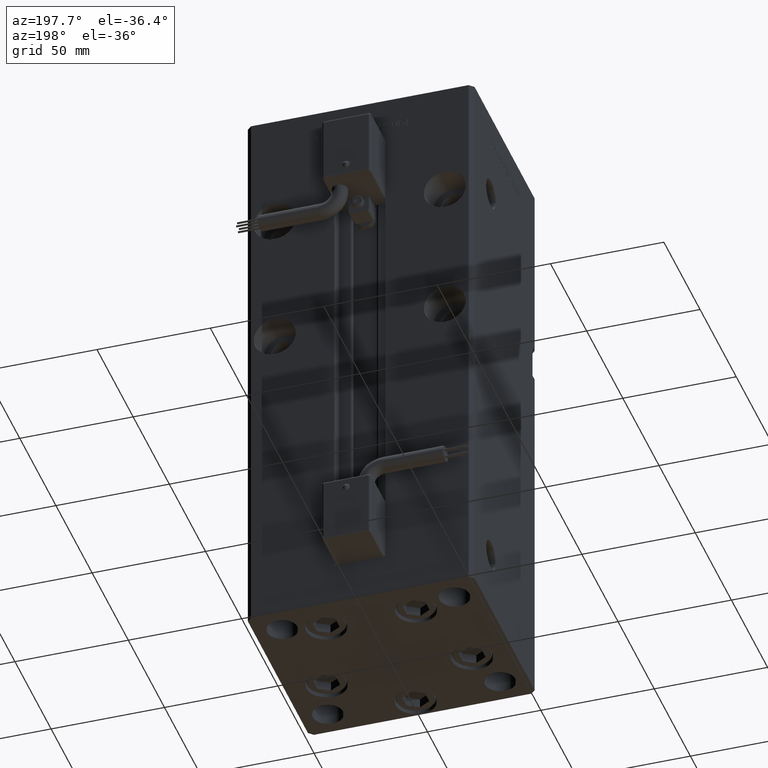
[diagram: clean part render]
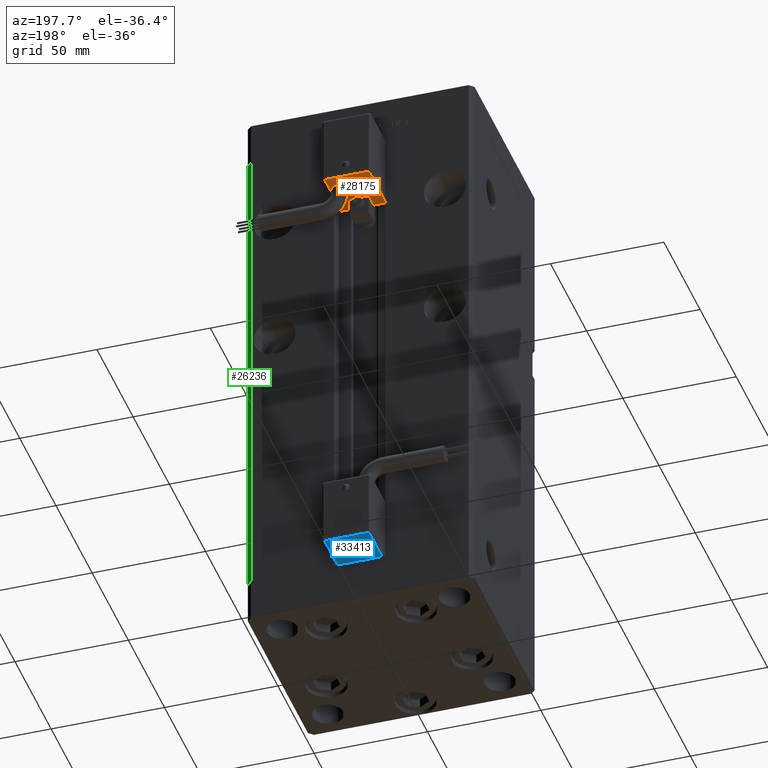
[diagram: same view with three faces highlighted in distinct colors, each labeled with its STEP entity id]
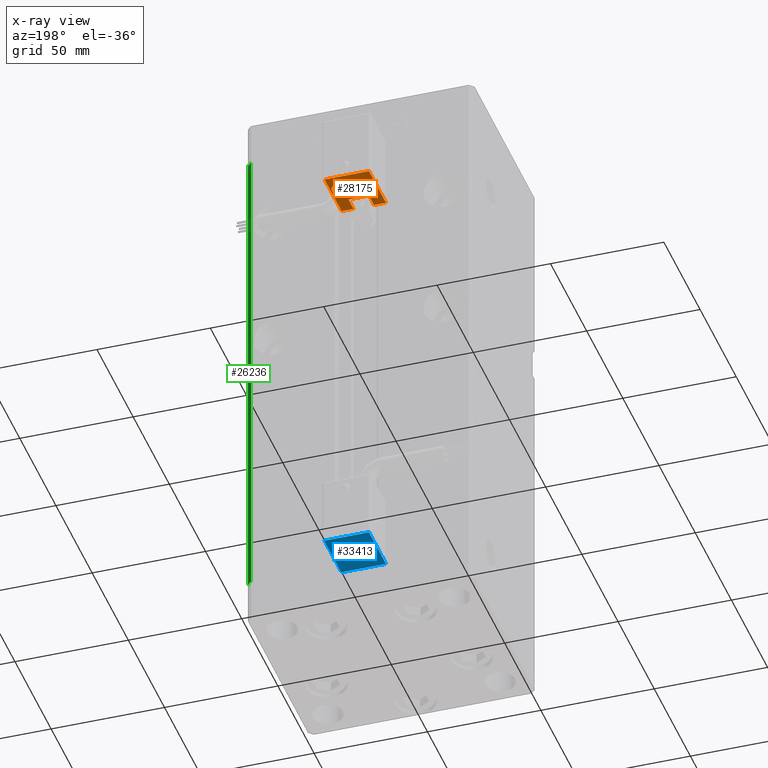
[diagram: x-ray of the same camera — body ghosted, the three highlighted faces saturated]
A machine part, auxiliary view with three faces highlighted in distinct colors.
The next image is the same camera in x-ray (body ghosted, the three faces saturated) — at least one of them is partly hidden behind the body in this view.
Their STEP definitions:

[orange] entity #28175 — the highlighted planar face has unit normal (0, -0, 1).
#741 = VERTEX_POINT ( 'NONE', #51564 ) ;
#929 = CARTESIAN_POINT ( 'NONE',  ( 4.500000000000000000, 34.00000000000000000, -55.00000000000000000 ) ) ;
#1082 = CARTESIAN_POINT ( 'NONE',  ( 9.799999999999998934, 50.50000000000000000, -55.00000000000000000 ) ) ;
#1833 = LINE ( 'NONE', #15482, #18000 ) ;
#2213 = VECTOR ( 'NONE', #31244, 1000.000000000000000 ) ;
#2519 = DIRECTION ( 'NONE',  ( 3.108624468950000014E-32, -1.400000000000000069E-16, 1.000000000000000000 ) ) ;
#4454 = VERTEX_POINT ( 'NONE', #33758 ) ;
#5756 = EDGE_CURVE ( 'NONE', #29025, #36406, #18706, .T. ) ;
#6130 = VECTOR ( 'NONE', #33051, 1000.000000000000000 ) ;
#8254 = EDGE_LOOP ( 'NONE', ( #42782, #18028, #24199, #39042, #17450, #50685, #31128, #36178 ) ) ;
#9630 = ORIENTED_EDGE ( 'NONE', *, *, #29558, .F. ) ;
#9673 = VECTOR ( 'NONE', #34107, 1000.000000000000000 ) ;
#11187 = DIRECTION ( 'NONE',  ( 2.220446049250000002E-16, 1.400000000000000069E-16, -1.000000000000000000 ) ) ;
#12172 = FACE_BOUND ( 'NONE', #44255, .T. ) ;
#12276 = CARTESIAN_POINT ( 'NONE',  ( 4.500000000000000000, 34.00000000000000000, -55.00000000000000000 ) ) ;
#13436 = AXIS2_PLACEMENT_3D ( 'NONE', #28672, #2519, #46019 ) ;
#13479 = EDGE_CURVE ( 'NONE', #4454, #55011, #53919, .T. ) ;
#13516 = CIRCLE ( 'NONE', #24411, 3.500000000000003109 ) ;
#14047 = CARTESIAN_POINT ( 'NONE',  ( -4.500000000000000000, 34.00000000000000000, -55.00000000000000000 ) ) ;
#15482 = CARTESIAN_POINT ( 'NONE',  ( 10.80000000000000071, 27.00000000000000000, -55.00000000000000000 ) ) ;
#15686 = LINE ( 'NONE', #12276, #6130 ) ;
#16155 = PLANE ( 'NONE',  #13436 ) ;
#16459 = EDGE_CURVE ( 'NONE', #25428, #49890, #23365, .T. ) ;
#17450 = ORIENTED_EDGE ( 'NONE', *, *, #24782, .T. ) ;
#17909 = VECTOR ( 'NONE', #22336, 1000.000000000000000 ) ;
#18000 = VECTOR ( 'NONE', #46193, 1000.000000000000000 ) ;
#18028 = ORIENTED_EDGE ( 'NONE', *, *, #24450, .T. ) ;
#18706 = LINE ( 'NONE', #23258, #2213 ) ;
#19176 = ORIENTED_EDGE ( 'NONE', *, *, #13479, .F. ) ;
#19395 = VERTEX_POINT ( 'NONE', #1082 ) ;
#19528 = VECTOR ( 'NONE', #35619, 1000.000000000000000 ) ;
#20740 = CARTESIAN_POINT ( 'NONE',  ( 10.80000000000000071, 27.00000000000000000, -55.00000000000000000 ) ) ;
#22336 = DIRECTION ( 'NONE',  ( 3.108624468950000014E-32, -1.000000000000000000, -1.400000000000000069E-16 ) ) ;
#23258 = CARTESIAN_POINT ( 'NONE',  ( -9.799999999999998934, 51.50000000000000000, -55.00000000000000000 ) ) ;
#23365 = LINE ( 'NONE', #929, #19528 ) ;
#24199 = ORIENTED_EDGE ( 'NONE', *, *, #5756, .T. ) ;
#24411 = AXIS2_PLACEMENT_3D ( 'NONE', #24836, #11187, #45600 ) ;
#24450 = EDGE_CURVE ( 'NONE', #40017, #29025, #25281, .T. ) ;
#24509 = DIRECTION ( 'NONE',  ( 2.220446049250000002E-16, 1.400000000000000069E-16, -1.000000000000000000 ) ) ;
#24782 = EDGE_CURVE ( 'NONE', #19395, #741, #43955, .T. ) ;
#24836 = CARTESIAN_POINT ( 'NONE',  ( 5.799999999999999822, 42.00000000000000000, -55.00000000000000000 ) ) ;
#25281 = LINE ( 'NONE', #20740, #9673 ) ;
#25428 = VERTEX_POINT ( 'NONE', #28332 ) ;
#25611 = EDGE_CURVE ( 'NONE', #36406, #19395, #38011, .T. ) ;
#26592 = CARTESIAN_POINT ( 'NONE',  ( 9.799999999999998934, 26.00000000000000000, -55.00000000000000000 ) ) ;
#26841 = LINE ( 'NONE', #14047, #51811 ) ;
#26954 = EDGE_CURVE ( 'NONE', #25428, #43612, #15686, .T. ) ;
#27110 = CARTESIAN_POINT ( 'NONE',  ( -4.500000000000000000, 27.00000000000000000, -55.00000000000000000 ) ) ;
#28175 = ADVANCED_FACE ( 'NONE', ( #41756, #12172 ), #16155, .F. ) ;
#28332 = CARTESIAN_POINT ( 'NONE',  ( 4.500000000000000000, 34.00000000000000000, -55.00000000000000000 ) ) ;
#28672 = CARTESIAN_POINT ( 'NONE',  ( 10.80000000000000071, 51.50000000000000000, -55.00000000000000000 ) ) ;
#28967 = CARTESIAN_POINT ( 'NONE',  ( -9.799999999999998934, 27.00000000000000000, -55.00000000000000000 ) ) ;
#29025 = VERTEX_POINT ( 'NONE', #28967 ) ;
#29475 = CARTESIAN_POINT ( 'NONE',  ( 10.80000000000000071, 50.50000000000000000, -55.00000000000000000 ) ) ;
#29558 = EDGE_CURVE ( 'NONE', #55011, #4454, #13516, .T. ) ;
#31128 = ORIENTED_EDGE ( 'NONE', *, *, #16459, .F. ) ;
#31244 = DIRECTION ( 'NONE',  ( -3.108624468950000014E-32, 1.000000000000000000, 1.400000000000000069E-16 ) ) ;
#33051 = DIRECTION ( 'NONE',  ( -1.000000000000000000, 0.000000000000000000, -2.220446049250000002E-16 ) ) ;
#33350 = EDGE_CURVE ( 'NONE', #43612, #40017, #26841, .T. ) ;
#33758 = CARTESIAN_POINT ( 'NONE',  ( 5.799999999999999822, 38.50000000000000000, -55.00000000000000000 ) ) ;
#34107 = DIRECTION ( 'NONE',  ( -1.000000000000000000, 0.000000000000000000, -2.220446049250000002E-16 ) ) ;
#35619 = DIRECTION ( 'NONE',  ( 2.664535259099999699E-32, -1.000000000000000000, -1.200000000000000024E-16 ) ) ;
#36178 = ORIENTED_EDGE ( 'NONE', *, *, #26954, .T. ) ;
#36406 = VERTEX_POINT ( 'NONE', #47605 ) ;
#37594 = DIRECTION ( 'NONE',  ( 0.000000000000000000, -1.000000000000000000, 0.000000000000000000 ) ) ;
#38011 = LINE ( 'NONE', #29475, #52419 ) ;
#38490 = CARTESIAN_POINT ( 'NONE',  ( 4.500000000000000000, 27.00000000000000000, -55.00000000000000000 ) ) ;
#39042 = ORIENTED_EDGE ( 'NONE', *, *, #25611, .T. ) ;
#40017 = VERTEX_POINT ( 'NONE', #27110 ) ;
#40987 = DIRECTION ( 'NONE',  ( 2.664535259099999699E-32, -1.000000000000000000, -1.200000000000000024E-16 ) ) ;
#41756 = FACE_OUTER_BOUND ( 'NONE', #8254, .T. ) ;
#42171 = AXIS2_PLACEMENT_3D ( 'NONE', #46124, #24509, #37594 ) ;
#42782 = ORIENTED_EDGE ( 'NONE', *, *, #33350, .T. ) ;
#43612 = VERTEX_POINT ( 'NONE', #52167 ) ;
#43955 = LINE ( 'NONE', #26592, #17909 ) ;
#44255 = EDGE_LOOP ( 'NONE', ( #19176, #9630 ) ) ;
#45600 = DIRECTION ( 'NONE',  ( 0.000000000000000000, -1.000000000000000000, 0.000000000000000000 ) ) ;
#46019 = DIRECTION ( 'NONE',  ( 1.000000000000000000, 2.220446049250000002E-16, 0.000000000000000000 ) ) ;
#46124 = CARTESIAN_POINT ( 'NONE',  ( 5.799999999999999822, 42.00000000000000000, -55.00000000000000000 ) ) ;
#46193 = DIRECTION ( 'NONE',  ( -1.000000000000000000, 0.000000000000000000, -2.220446049250000002E-16 ) ) ;
#46814 = DIRECTION ( 'NONE',  ( 1.000000000000000000, 0.000000000000000000, 2.220446049250000002E-16 ) ) ;
#47605 = CARTESIAN_POINT ( 'NONE',  ( -9.799999999999998934, 50.50000000000000000, -55.00000000000000000 ) ) ;
#49890 = VERTEX_POINT ( 'NONE', #38490 ) ;
#50600 = EDGE_CURVE ( 'NONE', #741, #49890, #1833, .T. ) ;
#50685 = ORIENTED_EDGE ( 'NONE', *, *, #50600, .T. ) ;
#51564 = CARTESIAN_POINT ( 'NONE',  ( 9.799999999999998934, 27.00000000000000000, -55.00000000000000000 ) ) ;
#51811 = VECTOR ( 'NONE', #40987, 1000.000000000000000 ) ;
#52167 = CARTESIAN_POINT ( 'NONE',  ( -4.500000000000000000, 34.00000000000000000, -55.00000000000000000 ) ) ;
#52419 = VECTOR ( 'NONE', #46814, 1000.000000000000000 ) ;
#53919 = CIRCLE ( 'NONE', #42171, 3.500000000000003109 ) ;
#54750 = CARTESIAN_POINT ( 'NONE',  ( 5.799999999999999822, 45.50000000000000711, -55.00000000000000000 ) ) ;
#55011 = VERTEX_POINT ( 'NONE', #54750 ) ;

[blue] entity #33413 — the highlighted planar face has unit normal (-0, 0, 1).
#193 = EDGE_CURVE ( 'NONE', #9019, #22032, #20075, .T. ) ;
#2310 = FACE_OUTER_BOUND ( 'NONE', #10930, .T. ) ;
#6286 = DIRECTION ( 'NONE',  ( 2.220446049250000002E-16, 1.400000000000000069E-16, -1.000000000000000000 ) ) ;
#7811 = VERTEX_POINT ( 'NONE', #36430 ) ;
#9019 = VERTEX_POINT ( 'NONE', #28038 ) ;
#10930 = EDGE_LOOP ( 'NONE', ( #18624, #18842, #49865, #28282 ) ) ;
#12593 = VECTOR ( 'NONE', #26083, 1000.000000000000000 ) ;
#15162 = CARTESIAN_POINT ( 'NONE',  ( 9.799999999999998934, 27.00000000000000000, -25.00000000000000000 ) ) ;
#15799 = CARTESIAN_POINT ( 'NONE',  ( -9.799999999999998934, 51.50000000000000000, -25.00000000000000000 ) ) ;
#16972 = CARTESIAN_POINT ( 'NONE',  ( -9.799999999999998934, 27.00000000000000000, -25.00000000000000000 ) ) ;
#17275 = LINE ( 'NONE', #34358, #12593 ) ;
#18624 = ORIENTED_EDGE ( 'NONE', *, *, #193, .T. ) ;
#18842 = ORIENTED_EDGE ( 'NONE', *, *, #47633, .T. ) ;
#20075 = LINE ( 'NONE', #15799, #34704 ) ;
#22032 = VERTEX_POINT ( 'NONE', #16972 ) ;
#24202 = PLANE ( 'NONE',  #55432 ) ;
#26083 = DIRECTION ( 'NONE',  ( -3.108624468950000014E-32, 1.000000000000000000, 1.400000000000000069E-16 ) ) ;
#27104 = DIRECTION ( 'NONE',  ( -1.000000000000000000, 0.000000000000000000, -2.220446049250000002E-16 ) ) ;
#27381 = LINE ( 'NONE', #49010, #38640 ) ;
#28038 = CARTESIAN_POINT ( 'NONE',  ( -9.799999999999998934, 50.50000000000000000, -25.00000000000000000 ) ) ;
#28282 = ORIENTED_EDGE ( 'NONE', *, *, #42817, .T. ) ;
#29167 = EDGE_CURVE ( 'NONE', #36598, #7811, #17275, .T. ) ;
#31405 = CARTESIAN_POINT ( 'NONE',  ( 10.80000000000000071, 51.50000000000000000, -25.00000000000000000 ) ) ;
#33163 = DIRECTION ( 'NONE',  ( 3.108624468950000014E-32, -1.000000000000000000, -1.400000000000000069E-16 ) ) ;
#33336 = VECTOR ( 'NONE', #45080, 1000.000000000000000 ) ;
#33413 = ADVANCED_FACE ( 'NONE', ( #2310 ), #24202, .F. ) ;
#34358 = CARTESIAN_POINT ( 'NONE',  ( 9.799999999999998934, 51.50000000000000000, -25.00000000000000000 ) ) ;
#34704 = VECTOR ( 'NONE', #33163, 1000.000000000000000 ) ;
#35670 = DIRECTION ( 'NONE',  ( 0.000000000000000000, -1.000000000000000000, -1.400000000000000069E-16 ) ) ;
#36430 = CARTESIAN_POINT ( 'NONE',  ( 9.799999999999998934, 50.50000000000000000, -25.00000000000000000 ) ) ;
#36598 = VERTEX_POINT ( 'NONE', #15162 ) ;
#38640 = VECTOR ( 'NONE', #27104, 1000.000000000000000 ) ;
#42817 = EDGE_CURVE ( 'NONE', #7811, #9019, #27381, .T. ) ;
#45080 = DIRECTION ( 'NONE',  ( 1.000000000000000000, 0.000000000000000000, 2.220446049250000002E-16 ) ) ;
#47633 = EDGE_CURVE ( 'NONE', #22032, #36598, #49339, .T. ) ;
#49010 = CARTESIAN_POINT ( 'NONE',  ( 10.80000000000000071, 50.50000000000000000, -25.00000000000000000 ) ) ;
#49339 = LINE ( 'NONE', #54165, #33336 ) ;
#49865 = ORIENTED_EDGE ( 'NONE', *, *, #29167, .T. ) ;
#54165 = CARTESIAN_POINT ( 'NONE',  ( 10.80000000000000071, 27.00000000000000000, -25.00000000000000000 ) ) ;
#55432 = AXIS2_PLACEMENT_3D ( 'NONE', #31405, #6286, #35670 ) ;

[green] entity #26236 — the highlighted planar face has unit normal (0.7071, 0.7071, 0).
#1346 = DIRECTION ( 'NONE',  ( 0.7071067811865463515, 0.7071067811865486830, -0.000000000000000000 ) ) ;
#1737 = EDGE_CURVE ( 'NONE', #30347, #26834, #54070, .T. ) ;
#2156 = CARTESIAN_POINT ( 'NONE',  ( 50.00000000000001421, 41.49999999999999289, 0.000000000000000000 ) ) ;
#5532 = EDGE_CURVE ( 'NONE', #30347, #40003, #19895, .T. ) ;
#7542 = DIRECTION ( 'NONE',  ( 0.7071067811865487940, -0.7071067811865463515, 0.000000000000000000 ) ) ;
#7940 = VERTEX_POINT ( 'NONE', #2156 ) ;
#9484 = ORIENTED_EDGE ( 'NONE', *, *, #5532, .F. ) ;
#10455 = LINE ( 'NONE', #53687, #35919 ) ;
#14294 = CARTESIAN_POINT ( 'NONE',  ( 50.00000000000001421, 41.49999999999999289, 218.5000000000000000 ) ) ;
#15397 = DIRECTION ( 'NONE',  ( 0.7071067811865487940, -0.7071067811865463515, 0.000000000000000000 ) ) ;
#15493 = ORIENTED_EDGE ( 'NONE', *, *, #38847, .T. ) ;
#17855 = PLANE ( 'NONE',  #34285 ) ;
#18406 = FACE_OUTER_BOUND ( 'NONE', #55739, .T. ) ;
#18686 = DIRECTION ( 'NONE',  ( -0.7071067811865486830, 0.7071067811865463515, 0.000000000000000000 ) ) ;
#19895 = LINE ( 'NONE', #37259, #36585 ) ;
#19942 = CARTESIAN_POINT ( 'NONE',  ( 48.00000000000000711, 43.50000000000000000, 218.5000000000000000 ) ) ;
#26236 = ADVANCED_FACE ( 'NONE', ( #18406 ), #17855, .T. ) ;
#26834 = VERTEX_POINT ( 'NONE', #14294 ) ;
#27451 = CARTESIAN_POINT ( 'NONE',  ( 48.00000000000000711, 43.50000000000000000, 218.5000000000000000 ) ) ;
#29159 = LINE ( 'NONE', #46505, #51361 ) ;
#30347 = VERTEX_POINT ( 'NONE', #27451 ) ;
#31120 = VECTOR ( 'NONE', #15397, 1000.000000000000000 ) ;
#34285 = AXIS2_PLACEMENT_3D ( 'NONE', #52271, #1346, #18686 ) ;
#35919 = VECTOR ( 'NONE', #45440, 1000.000000000000000 ) ;
#36585 = VECTOR ( 'NONE', #46067, 1000.000000000000000 ) ;
#37259 = CARTESIAN_POINT ( 'NONE',  ( 48.00000000000000711, 43.50000000000000000, 218.5000000000000000 ) ) ;
#38847 = EDGE_CURVE ( 'NONE', #26834, #7940, #10455, .T. ) ;
#40003 = VERTEX_POINT ( 'NONE', #54115 ) ;
#42697 = EDGE_CURVE ( 'NONE', #40003, #7940, #29159, .T. ) ;
#45440 = DIRECTION ( 'NONE',  ( -0.000000000000000000, -0.000000000000000000, -1.000000000000000000 ) ) ;
#46067 = DIRECTION ( 'NONE',  ( -0.000000000000000000, -0.000000000000000000, -1.000000000000000000 ) ) ;
#46505 = CARTESIAN_POINT ( 'NONE',  ( 48.00000000000000711, 43.50000000000000000, 0.000000000000000000 ) ) ;
#48134 = ORIENTED_EDGE ( 'NONE', *, *, #1737, .T. ) ;
#48506 = ORIENTED_EDGE ( 'NONE', *, *, #42697, .F. ) ;
#51361 = VECTOR ( 'NONE', #7542, 1000.000000000000000 ) ;
#52271 = CARTESIAN_POINT ( 'NONE',  ( 48.00000000000000711, 43.50000000000000000, 218.5000000000000000 ) ) ;
#53687 = CARTESIAN_POINT ( 'NONE',  ( 50.00000000000001421, 41.49999999999999289, 218.5000000000000000 ) ) ;
#54070 = LINE ( 'NONE', #19942, #31120 ) ;
#54115 = CARTESIAN_POINT ( 'NONE',  ( 48.00000000000000711, 43.50000000000000000, 0.000000000000000000 ) ) ;
#55739 = EDGE_LOOP ( 'NONE', ( #48506, #9484, #48134, #15493 ) ) ;